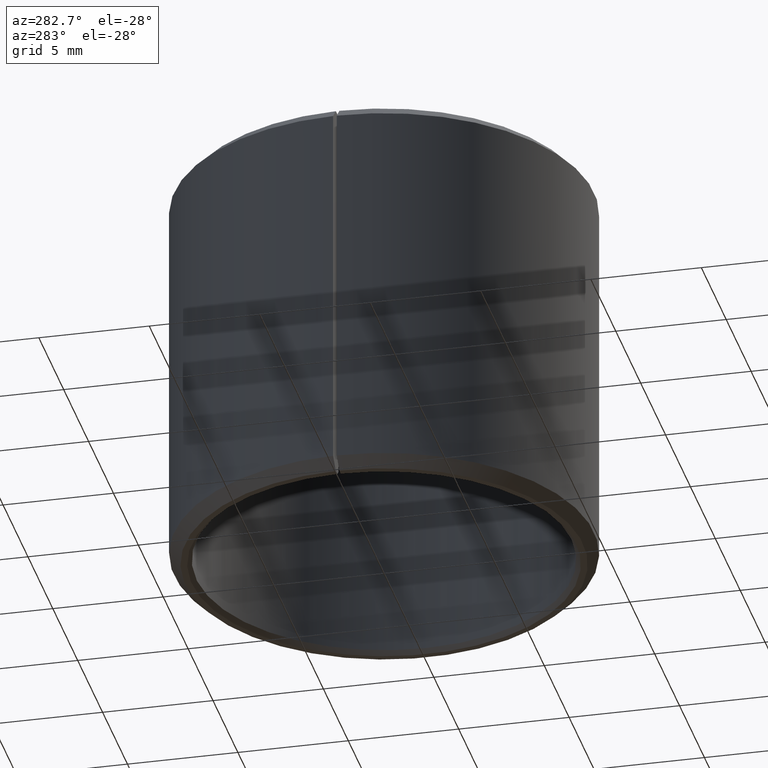
[diagram: clean part render]
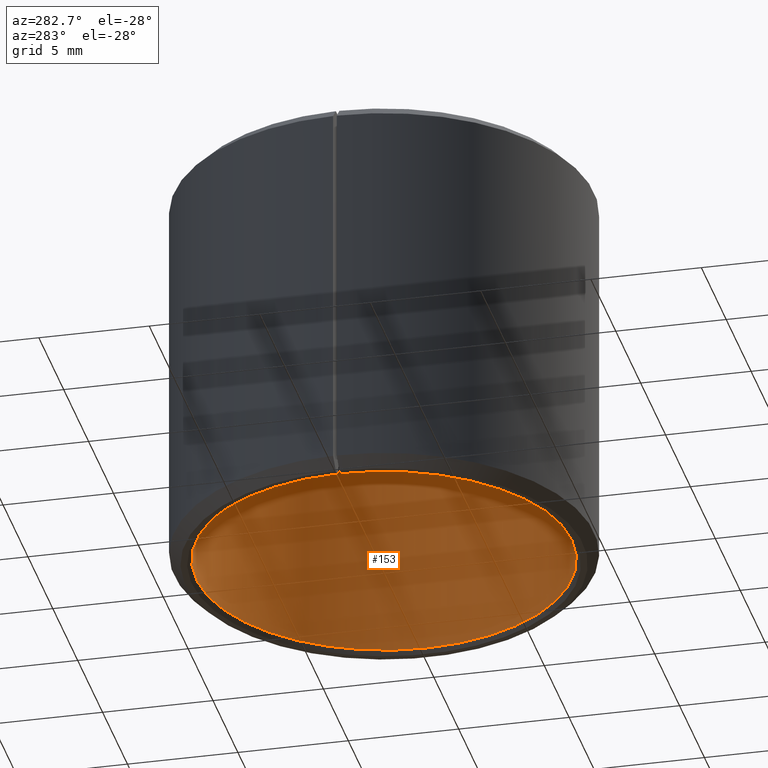
[diagram: same view with one face highlighted and labeled with its STEP entity id]
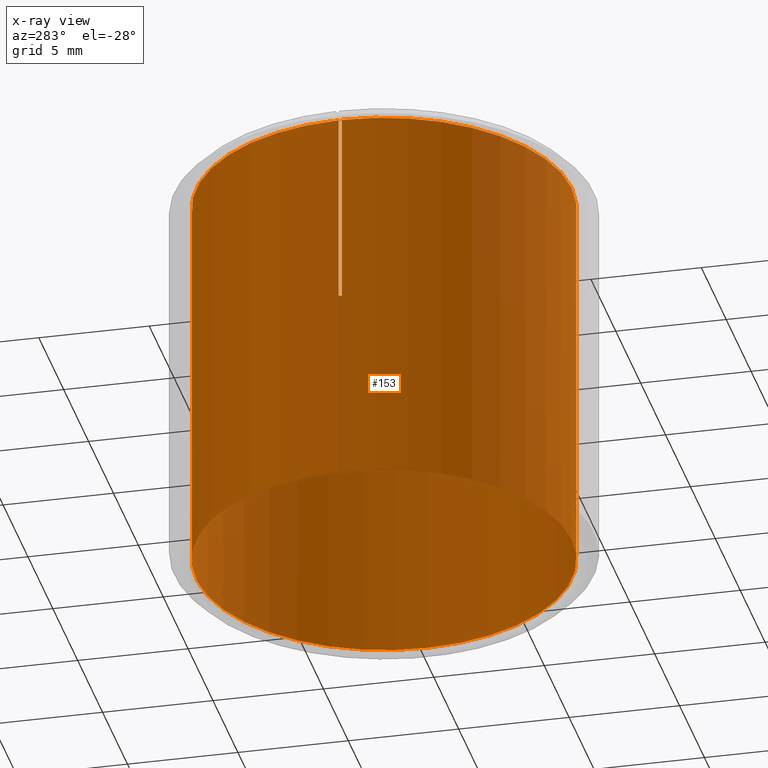
[diagram: x-ray of the same camera — body ghosted, the highlighted face saturated]
A machine part, auxiliary view. The second image highlights one B-rep face of the part: STEP entity #153.
The next image is the same camera in x-ray: the body ghosted, the highlighted face saturated — about 2% of this face is hidden behind the body in this view.
In plain terms, the highlighted cylindrical surface (partial cylindrical patch) has radius 8.5 mm, axis along (-0, 0, -1).
Its self-contained STEP definition (entity closure, byte-faithful):
#153=ADVANCED_FACE('',(#165),#166,.F.);
#165=FACE_OUTER_BOUND('',#186,.T.);
#166=CYLINDRICAL_SURFACE('',#187,0.0085);
#186=EDGE_LOOP('',(#206,#207,#208,#209));
#187=AXIS2_PLACEMENT_3D('',#210,#211,#212);
#206=ORIENTED_EDGE('',*,*,#284,.T.);
#207=ORIENTED_EDGE('',*,*,#285,.F.);
#208=ORIENTED_EDGE('',*,*,#286,.F.);
#209=ORIENTED_EDGE('',*,*,#287,.T.);
#210=CARTESIAN_POINT('',(-3.46944695195362E-018,-2.60208521396521E-018,-5.42101086242752E-020));
#211=DIRECTION('',(6.12323399573677E-017,0.0,-1.0));
#212=DIRECTION('',(-1.0,0.0,-6.12323399573677E-017));
#284=EDGE_CURVE('',#308,#309,#310,.T.);
#285=EDGE_CURVE('',#311,#309,#312,.T.);
#286=EDGE_CURVE('',#313,#311,#314,.T.);
#287=EDGE_CURVE('',#313,#308,#315,.T.);
#308=VERTEX_POINT('',#348);
#309=VERTEX_POINT('',#349);
#310=CIRCLE('',#350,0.0085);
#311=VERTEX_POINT('',#351);
#312=LINE('',#352,#353);
#313=VERTEX_POINT('',#354);
#314=CIRCLE('',#355,0.0085);
#315=LINE('',#356,#357);
#348=CARTESIAN_POINT('',(0.000148345454716907,0.00849870540882932,0.0002));
#349=CARTESIAN_POINT('',(-3.46944695195362E-018,0.0085,0.0002));
#350=AXIS2_PLACEMENT_3D('',#404,#405,#406);
#351=CARTESIAN_POINT('',(-4.33680868994202E-018,0.0085,0.0178));
#352=CARTESIAN_POINT('',(-4.33680868994202E-018,0.0085,0.0178));
#353=VECTOR('',#407,1.0);
#354=CARTESIAN_POINT('',(0.000148345454716906,0.00849870540882932,0.0178));
#355=AXIS2_PLACEMENT_3D('',#408,#409,#410);
#356=CARTESIAN_POINT('',(0.000148345454716906,0.00849870540882932,0.0178));
#357=VECTOR('',#411,1.0);
#404=CARTESIAN_POINT('',(-3.46944695195362E-018,-2.60208521396521E-018,0.0002));
#405=DIRECTION('',(6.12323399573677E-017,0.0,-1.0));
#406=DIRECTION('',(-1.0,0.0,-6.12323399573677E-017));
#407=DIRECTION('',(4.92819169311593E-017,1.97127667724637E-016,-1.0));
#408=CARTESIAN_POINT('',(-4.33680868994202E-018,-2.60208521396521E-018,0.0178));
#409=DIRECTION('',(6.12323399573677E-017,0.0,-1.0));
#410=DIRECTION('',(-1.0,0.0,-6.12323399573677E-017));
#411=DIRECTION('',(5.27240892156335E-017,1.97306207865784E-016,-1.0));